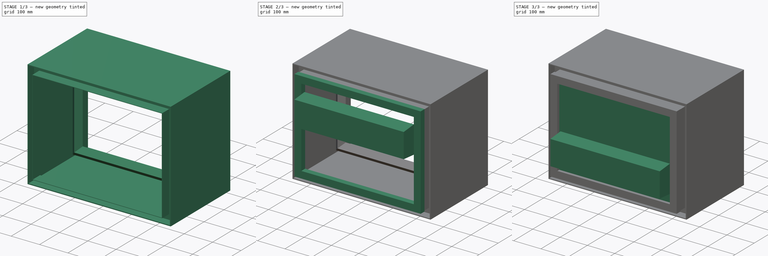
[diagram: build sequence overview — one tinted view per stage of 3, left to right]
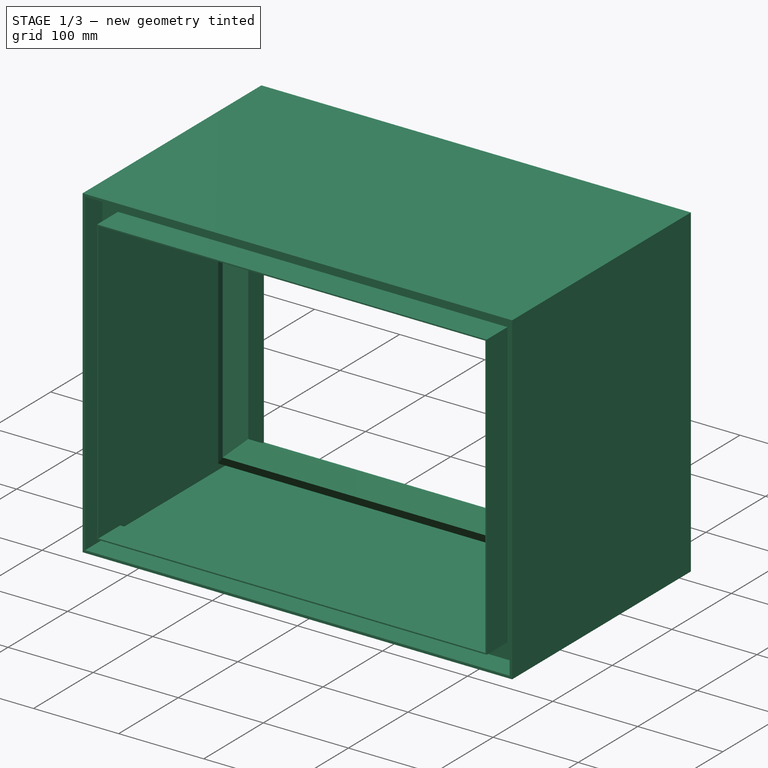
[diagram: stage 1 of 3 — iso view after this stage's code; geometry added in this stage tinted green]
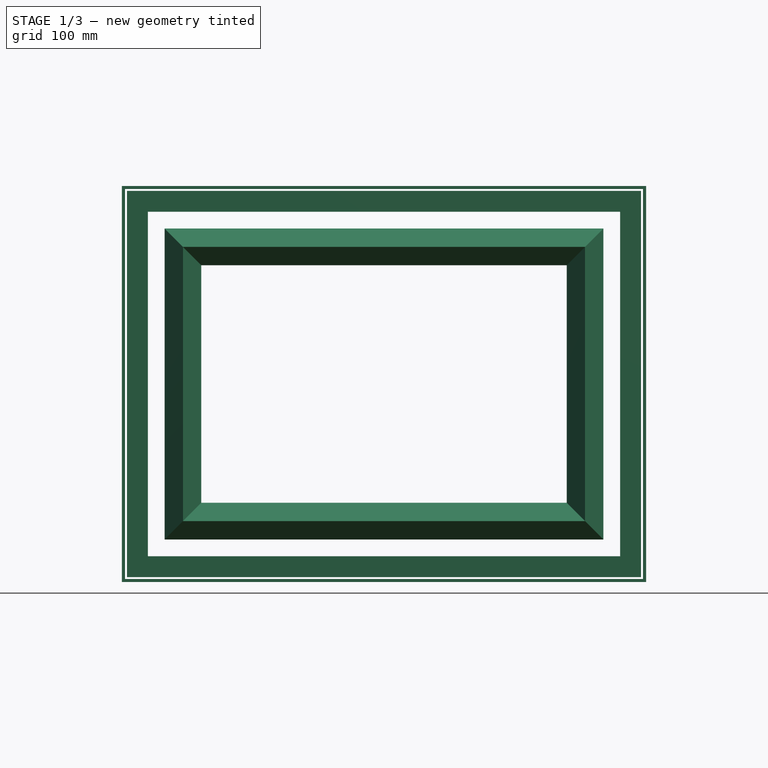
[diagram: stage 1 of 3 — front view after this stage's code; geometry added in this stage tinted green]
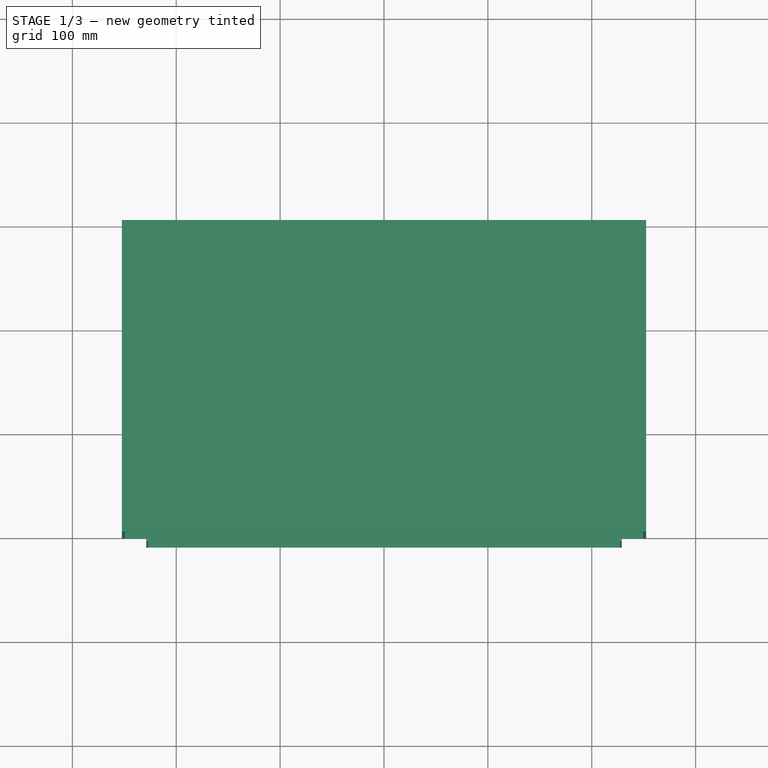
[diagram: stage 1 of 3 — top view after this stage's code; geometry added in this stage tinted green]
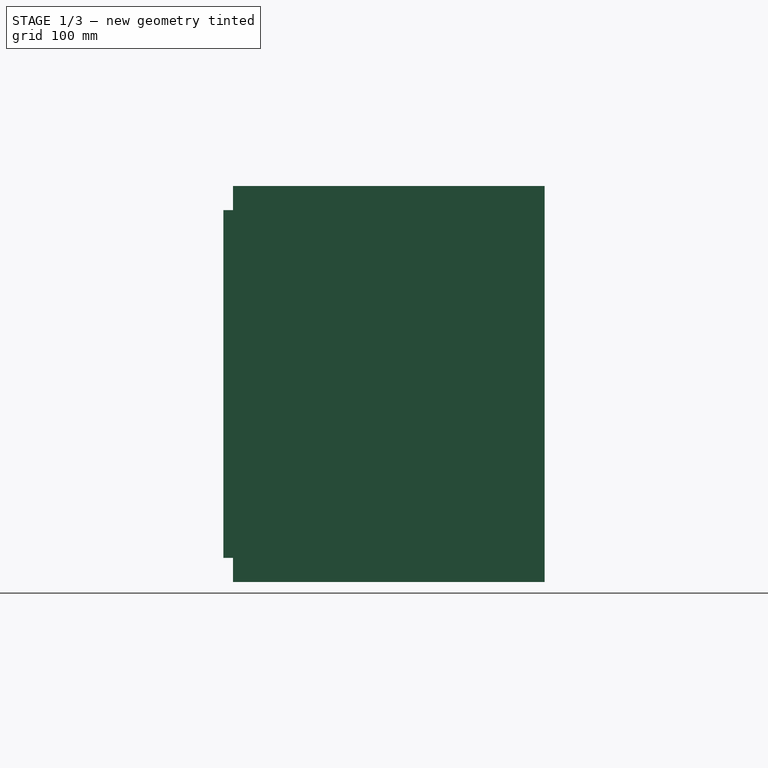
[diagram: stage 1 of 3 — right view after this stage's code; geometry added in this stage tinted green]
FCSTD DOCUMENT  (FreeCAD 0.18R13516 (Git))
Label: CloudChamber_peltier
License: All rights reserved
LicenseURL: http://en.wikipedia.org/wiki/All_rights_reserved
objects: PartDesign::Body×8, Sketcher::SketchObject×7, PartDesign::Pad×4, App::DocumentObjectGroup×4, PartDesign::ShapeBinder×3, PartDesign::AdditivePipe×3, PartDesign::FeatureBase×1
note: 33 computed .brp shape members not serialized (recipe doc carries the construction recipe); baked Part::Feature solids carry a one-line shape summary decoded from their .brp

FEATURE [PartDesign::Body] Body003
  Group = -> [Sketch003,AdditivePipe,CopyPad]
  Origin = -> Origin003
  Tip = -> AdditivePipe
FEATURE [Sketcher::SketchObject] Sketch004
  MapMode = 5
  Support = -> [XY_Plane004]
  sketch-geometry (6):
    g0: LineSegment StartX=227.361 StartY=-9.22753 StartZ=0 EndX=227.361 EndY=27.2725 EndZ=0
    g1: LineSegment StartX=227.361 StartY=27.2725 StartZ=0 EndX=247.361 EndY=27.2725 EndZ=0
    g2: LineSegment StartX=247.361 StartY=27.2725 StartZ=0 EndX=247.361 EndY=25.7725 EndZ=0
    g3: LineSegment StartX=247.361 StartY=25.7725 StartZ=0 EndX=228.861 EndY=25.7725 EndZ=0
    g4: LineSegment StartX=228.861 StartY=25.7725 StartZ=0 EndX=228.861 EndY=-9.22753 EndZ=0
    g5: LineSegment StartX=227.361 StartY=-9.22753 StartZ=0 EndX=228.861 EndY=-9.22753 EndZ=0
  constraints (16):
    c: Vertical(g0)
    c: Coincident(g1,g0)
    c: Horizontal(g1)
    c: Horizontal(g3)
    c: Vertical(g4)
    c: Coincident(g5,g4)
    c: Horizontal(g5)
    c: Coincident(g0,g5)
    c: Coincident(g3,g4)
    c: Coincident(g3,g2)
    c: Vertical(g2)
    c: Distance(g2) = 1.5
    c: Coincident(g1,g2)
    c: Equal(g5,g2)
    c: Distance(g4) = 35
    c: Distance(g1) = 20
FEATURE [PartDesign::ShapeBinder] CopyPad001
  Placement = pos=(0,0,0) rot=(1,0,0;1.5708rad)
FEATURE [PartDesign::AdditivePipe] AdditivePipe001
  AuxilleryCurvelinear = true
  AuxillerySpineTangent = false
  Binormal = (0,0,0)
  Mode = 0
  Profile = -> Sketch004
  Spine = -> CopyPad001 [Edge7,Edge10,Edge12,Edge4]
  SpineTangent = false
  Transformation = 0
  Transition = 1
FEATURE [PartDesign::Body] Body004  label="drzak_led"
  Group = -> [Sketch004,AdditivePipe001,CopyPad001]
  Origin = -> Origin004
  Tip = -> AdditivePipe001
FEATURE [App::DocumentObjectGroup] Skupina003  label="okap"
  Group = -> [Body003,Body004]
FEATURE [Sketcher::SketchObject] Sketch005
  MapMode = 5
  Placement = pos=(0,0,0) rot=(1,0,0;1.5708rad)
  Support = -> [XZ_Plane005]
  sketch-geometry (10):
    g0: LineSegment StartX=-249.363 StartY=187.663 StartZ=0 EndX=249.363 EndY=187.663 EndZ=0
    g1: LineSegment StartX=249.363 StartY=187.663 StartZ=0 EndX=249.363 EndY=-187.663 EndZ=0
    g2: LineSegment StartX=249.363 StartY=-187.663 StartZ=0 EndX=-249.363 EndY=-187.663 EndZ=0
    g3: LineSegment StartX=-249.363 StartY=-187.663 StartZ=0 EndX=-249.363 EndY=187.663 EndZ=0
    g4: LineSegment [constr] StartX=-249.363 StartY=187.663 StartZ=0 EndX=0 EndY=0 EndZ=0
    g5: LineSegment [constr] StartX=0 StartY=0 StartZ=0 EndX=249.363 EndY=-187.663 EndZ=0
    g6: LineSegment StartX=-252.363 StartY=190.663 StartZ=0 EndX=252.363 EndY=190.663 EndZ=0
    g7: LineSegment StartX=252.363 StartY=190.663 StartZ=0 EndX=252.363 EndY=-190.663 EndZ=0
    g8: LineSegment StartX=252.363 StartY=-190.663 StartZ=0 EndX=-252.363 EndY=-190.663 EndZ=0
    g9: LineSegment StartX=-252.363 StartY=-190.663 StartZ=0 EndX=-252.363 EndY=190.663 EndZ=0
  constraints (26):
    c: Coincident(g0,g1)
    c: Coincident(g1,g2)
    c: Coincident(g2,g3)
    c: Coincident(g3,g0)
    c: Horizontal(g0)
    c: Horizontal(g2)
    c: Vertical(g1)
    c: Vertical(g3)
    c: Coincident(g4,g0)
    c: Coincident(g4,g-1)
    c: Coincident(g5,g-1)
    c: Coincident(g5,g1)
    c: Equal(g5,g4)
    c: Parallel(g5,g4)
    c: Coincident(g6,g7)
    c: Coincident(g7,g8)
    c: Coincident(g8,g9)
    c: Coincident(g9,g6)
    c: Horizontal(g6)
    c: Horizontal(g8)
    c: Vertical(g7)
    c: Vertical(g9)
    c: Distance(g1,g8) = 3
    c: DistanceX(g1,g7) = 3
    c: DistanceX(g6,g0) = 3
    c: DistanceY(g0,g6) = 3
FEATURE [PartDesign::Pad] Pad003
  Length = 300
  Length2 = 100
  Placement = pos=(0,0,0) rot=(1,0,0;1.5708rad)
  Profile = -> Sketch005
  Reversed = true
  Type = 0
FEATURE [PartDesign::Body] Body005  label="stěny"
  Group = -> [Sketch005,Pad003]
  Origin = -> Origin005
  Placement = pos=(0,-65,0) rot=(0,0,1;0rad)
  Tip = -> Pad003
FEATURE [App::DocumentObjectGroup] Skupina001  label="Skleník"
  Group = -> [Body005]
FEATURE [PartDesign::Body] Body007
  Origin = -> Origin007
FEATURE [Sketcher::SketchObject] Sketch006
  MapMode = 5
  Support = -> [XY_Plane006]
  sketch-geometry (8):
    g0: LineSegment StartX=175.873 StartY=168.645 StartZ=0 EndX=193.551 EndY=150.967 EndZ=0
    g1: LineSegment StartX=193.551 StartY=150.967 StartZ=0 EndX=211.228 EndY=168.645 EndZ=0
    g2: LineSegment StartX=211.228 StartY=168.645 StartZ=0 EndX=210.168 EndY=169.705 EndZ=0
    g3: LineSegment StartX=210.168 StartY=169.705 StartZ=0 EndX=193.551 EndY=153.088 EndZ=0
    g4: LineSegment StartX=193.551 StartY=153.088 StartZ=0 EndX=176.934 EndY=169.705 EndZ=0
    g5: LineSegment StartX=175.873 StartY=168.645 StartZ=0 EndX=176.934 EndY=169.705 EndZ=0
    g6: LineSegment [constr] StartX=176.934 StartY=169.705 StartZ=0 EndX=193.551 EndY=169.705 EndZ=0
    g7: LineSegment [constr] StartX=193.551 StartY=169.705 StartZ=0 EndX=210.168 EndY=169.705 EndZ=0
  constraints (21):
    c: Coincident(g2,g1)
    c: Coincident(g5,g0)
    c: Coincident(g5,g4)
    c: Perpendicular(g5,g2)
    c: Equal(g2,g5)
    c: Perpendicular(g4,g5)
    c: Parallel(g0,g4)
    c: Parallel(g1,g3)
    c: Coincident(g2,g3)
    c: Coincident(g3,g4)
    c: Coincident(g0,g1)
    c: Angle(g3,g4) = 1.5708
    c: Equal(g3,g4)
    c: Distance(g2) = 1.5
    c: Distance(g1) = 25
    c: Coincident(g6,g4)
    c: Horizontal(g6)
    c: Coincident(g7,g2)
    c: Coincident(g6,g7)
    c: Horizontal(g7)
    c: Equal(g7,g6)
FEATURE [PartDesign::ShapeBinder] CopyPad002
  Placement = pos=(0,0,0) rot=(1,0,0;1.5708rad)
FEATURE [PartDesign::AdditivePipe] AdditivePipe002
  AuxilleryCurvelinear = true
  AuxillerySpineTangent = false
  Binormal = (0,0,0)
  Mode = 0
  Profile = -> Sketch006
  Spine = -> CopyPad002 [Edge6,Edge9,Edge3,Edge11]
  SpineTangent = false
  Transformation = 0
  Transition = 1
FEATURE [PartDesign::Body] Body006
  Group = -> [Sketch006,AdditivePipe002,CopyPad002]
  Origin = -> Origin006
  Tip = -> AdditivePipe002
FEATURE [App::DocumentObjectGroup] Skupina002  label="Alokhol"
  Group = -> [Skupina003,Body006]
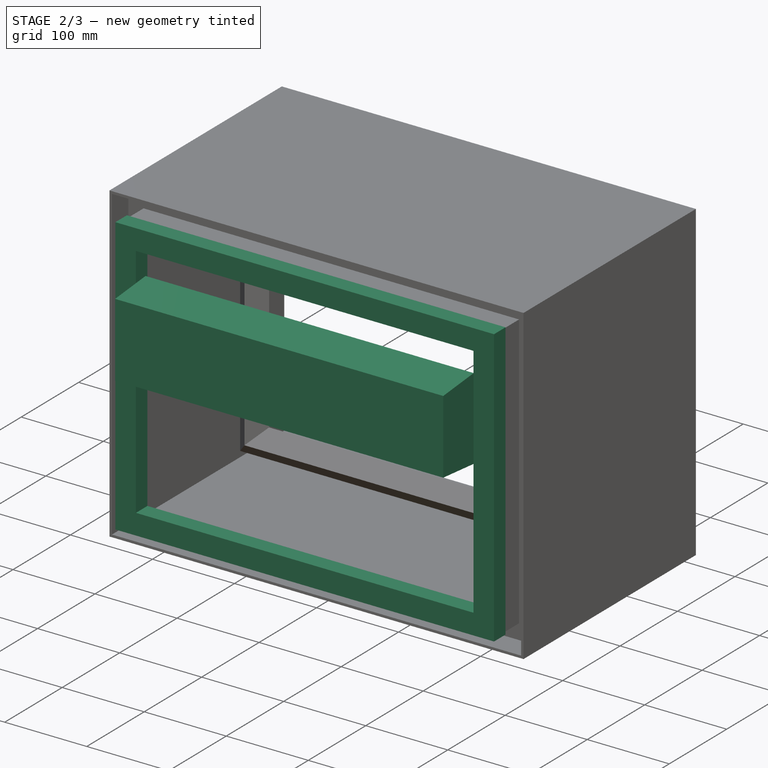
[diagram: stage 2 of 3 — iso view after this stage's code; geometry added in this stage tinted green]
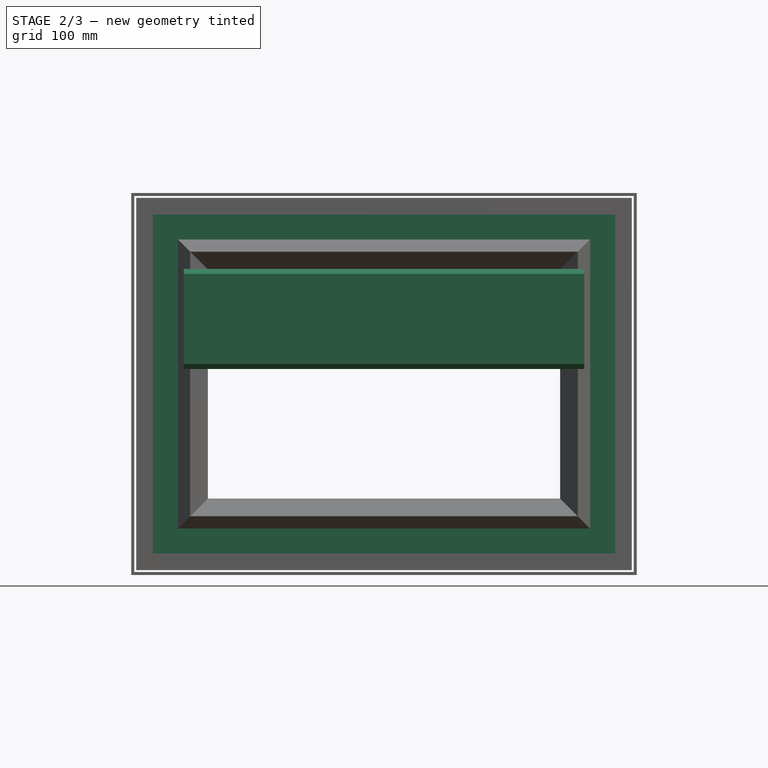
[diagram: stage 2 of 3 — front view after this stage's code; geometry added in this stage tinted green]
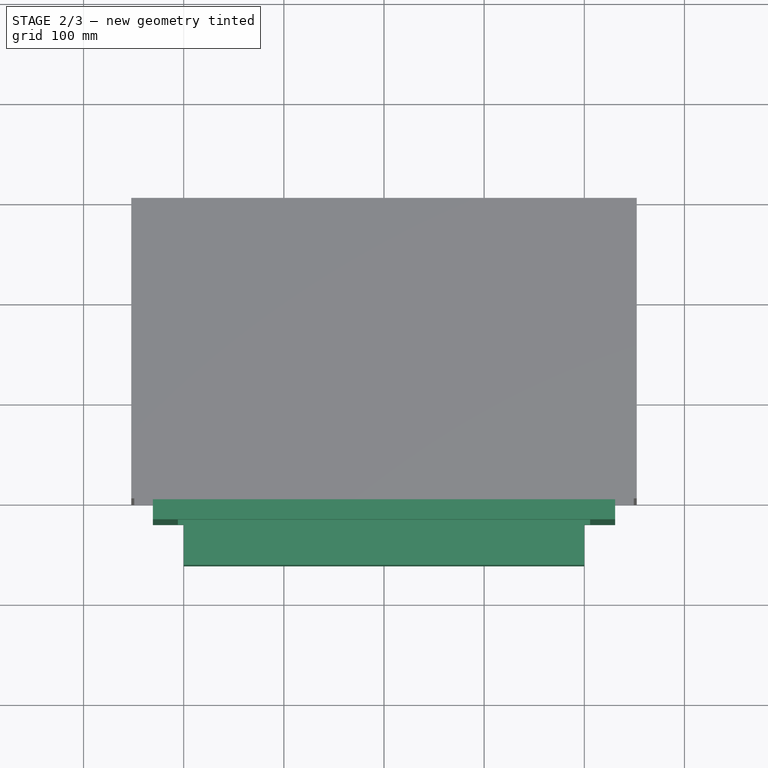
[diagram: stage 2 of 3 — top view after this stage's code; geometry added in this stage tinted green]
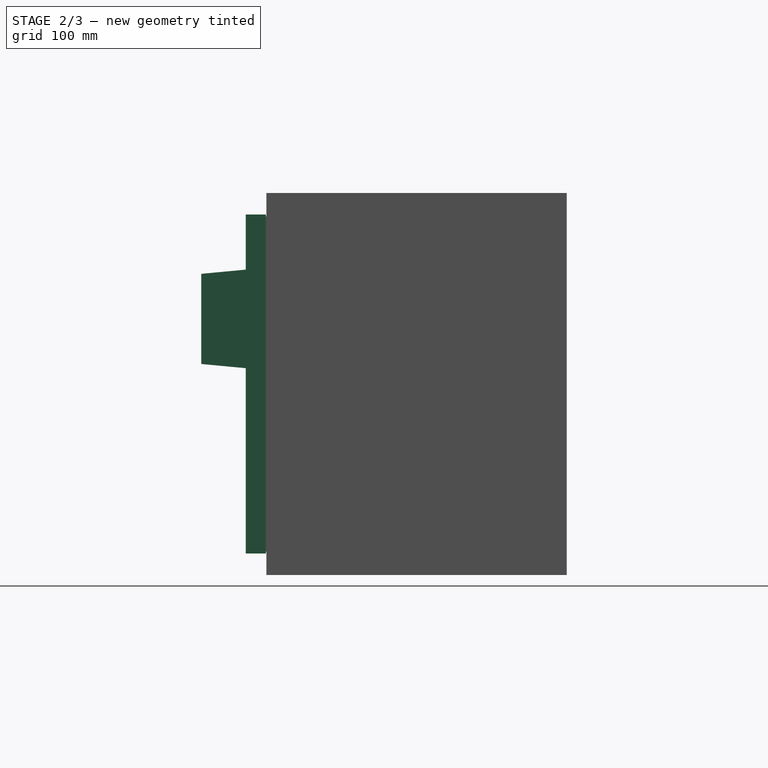
[diagram: stage 2 of 3 — right view after this stage's code; geometry added in this stage tinted green]
FEATURE [PartDesign::Body] Body  label="Chladící podložka"
  Group = -> [Sketch,Pad]
  Origin = -> Origin
  Placement = pos=(0,12,0) rot=(0,0,1;0rad)
  Tip = -> Pad
FEATURE [Sketcher::SketchObject] Sketch001
  MapMode = 5
  Placement = pos=(0,0,0) rot=(0.57735,0.57735,0.57735;2.0944rad)
  Support = -> [YZ_Plane001]
  sketch-geometry (7):
    g0: LineSegment [constr] StartX=-65 StartY=115 StartZ=0 EndX=-12 EndY=115 EndZ=0
    g1: LineSegment StartX=-12 StartY=115 StartZ=0 EndX=-12 EndY=15 EndZ=0
    g2: LineSegment [constr] StartX=-12 StartY=15 StartZ=0 EndX=-65 EndY=15 EndZ=0
    g3: LineSegment [constr] StartX=-65 StartY=15 StartZ=0 EndX=-65 EndY=115 EndZ=0
    g4: LineSegment StartX=-12 StartY=15 StartZ=0 EndX=-65 EndY=20 EndZ=0
    g5: LineSegment StartX=-65 StartY=20 StartZ=0 EndX=-65 EndY=110 EndZ=0
    g6: LineSegment StartX=-65 StartY=110 StartZ=0 EndX=-12 EndY=115 EndZ=0
  constraints (21):
    c: Coincident(g0,g1)
    c: Coincident(g1,g2)
    c: Coincident(g2,g3)
    c: Coincident(g3,g0)
    c: Horizontal(g0)
    c: Horizontal(g2)
    c: Vertical(g1)
    c: Vertical(g3)
    c: DistanceX(g0,g0) = 53
    c: DistanceY(g1,g1) = 100
    c: DistanceY(g-1,g1) = 15
    c: DistanceX(g1,g-1) = 12
    c: Coincident(g4,g1)
    c: PointOnObject(g4,g3)
    c: Coincident(g5,g4)
    c: Vertical(g5)
    c: PointOnObject(g6,g1)
    c: Coincident(g5,g6)
    c: DistanceY(g5,g0) = 5
    c: DistanceY(g2,g4) = 5
    c: Coincident(g0,g6)
FEATURE [PartDesign::Pad] Pad001
  Length = 400
  Length2 = 100
  Midplane = true
  Placement = pos=(0,0,0) rot=(0.57735,0.57735,0.57735;2.0944rad)
  Profile = -> Sketch001
  Type = 0
FEATURE [App::DocumentObjectGroup] Skupina  label="Chlazení"
  Group = -> [Body,Body001,Body002,Clone]
FEATURE [Sketcher::SketchObject] Sketch003
  MapMode = 5
  Support = -> [XY_Plane003]
  sketch-geometry (10):
    g0: LineSegment StartX=205.776 StartY=-0.507126 StartZ=0 EndX=205.776 EndY=-20.5071 EndZ=0
    g1: LineSegment StartX=205.776 StartY=-20.5071 StartZ=0 EndX=230.776 EndY=-20.5071 EndZ=0
    g2: LineSegment StartX=230.776 StartY=-20.5071 StartZ=0 EndX=230.776 EndY=-0.507126 EndZ=0
    g3: LineSegment StartX=230.776 StartY=-0.507126 StartZ=0 EndX=229.276 EndY=-0.507126 EndZ=0
    g4: LineSegment StartX=229.276 StartY=-0.507126 StartZ=0 EndX=229.276 EndY=-19.0071 EndZ=0
    g5: LineSegment StartX=229.276 StartY=-19.0071 StartZ=0 EndX=207.276 EndY=-19.0071 EndZ=0
    g6: LineSegment StartX=207.276 StartY=-19.0071 StartZ=0 EndX=207.276 EndY=-0.507126 EndZ=0
    g7: LineSegment StartX=207.276 StartY=-0.507126 StartZ=0 EndX=205.776 EndY=-0.507126 EndZ=0
    g8: LineSegment [constr] StartX=207.276 StartY=-0.507126 StartZ=0 EndX=229.276 EndY=-0.507126 EndZ=0
    g9: LineSegment [constr] StartX=229.276 StartY=-19.0071 StartZ=0 EndX=229.276 EndY=-20.5071 EndZ=0
  constraints (27):
    c: Vertical(g0)
    c: Coincident(g1,g0)
    c: Horizontal(g1)
    c: Vertical(g2)
    c: Coincident(g3,g2)
    c: Horizontal(g3)
    c: Coincident(g4,g3)
    c: Vertical(g4)
    c: Horizontal(g5)
    c: Coincident(g6,g5)
    c: Vertical(g6)
    c: Coincident(g7,g6)
    c: Coincident(g7,g0)
    c: Coincident(g8,g6)
    c: Coincident(g8,g3)
    c: Horizontal(g7)
    c: Horizontal(g8)
    c: Equal(g7,g3)
    c: Coincident(g9,g5)
    c: PointOnObject(g9,g1)
    c: Vertical(g9)
    c: Coincident(g4,g5)
    c: Equal(g9,g3)
    c: Distance(g3) = 1.5
    c: Distance(g2) = 20
    c: Coincident(g1,g2)
    c: DistanceX(g1,g1) = 25
FEATURE [PartDesign::ShapeBinder] CopyPad
  Placement = pos=(0,0,0) rot=(1,0,0;1.5708rad)
FEATURE [PartDesign::AdditivePipe] AdditivePipe
  AuxilleryCurvelinear = true
  AuxillerySpineTangent = false
  Binormal = (0,0,0)
  Mode = 0
  Profile = -> Sketch003
  Spine = -> CopyPad [Edge7,Edge10,Edge4,Edge12]
  SpineTangent = false
  Transformation = 0
  Transition = 1
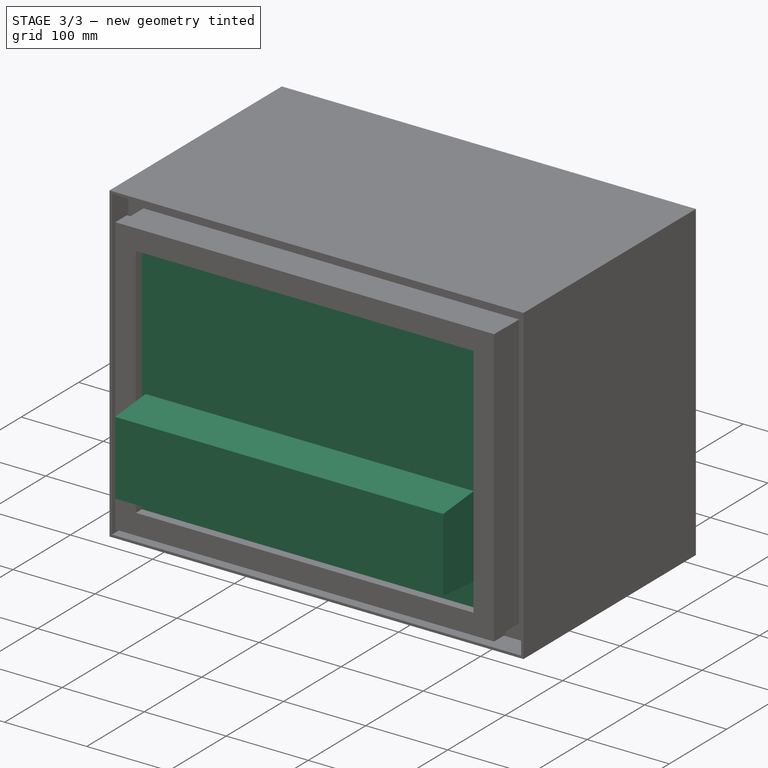
[diagram: stage 3 of 3 — iso view after this stage's code; geometry added in this stage tinted green]
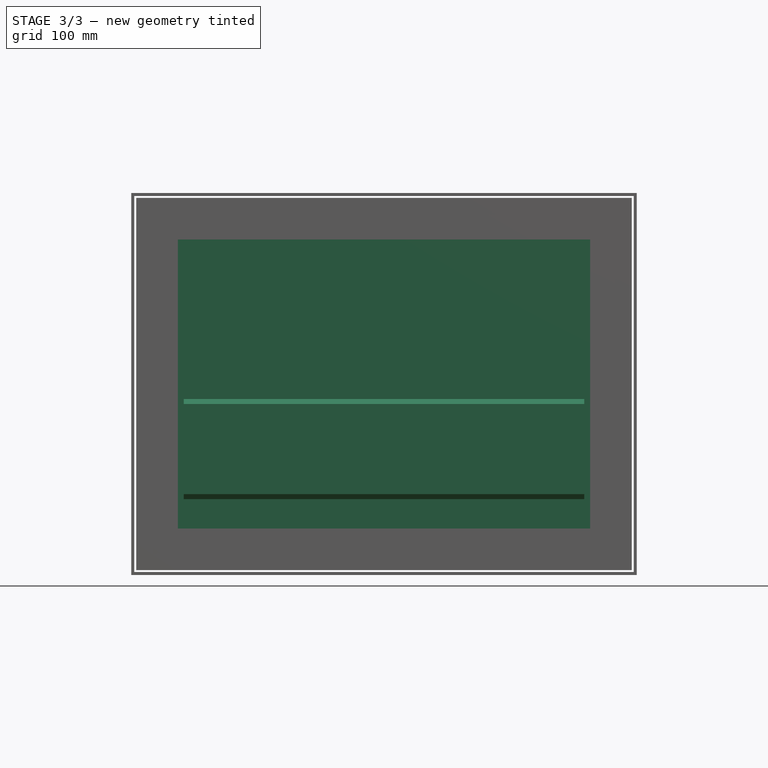
[diagram: stage 3 of 3 — front view after this stage's code; geometry added in this stage tinted green]
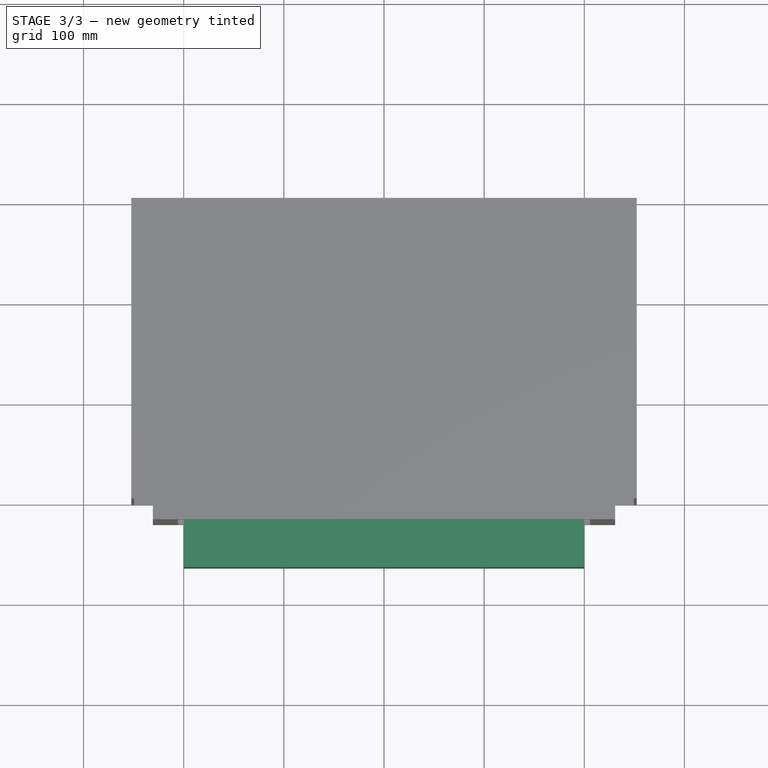
[diagram: stage 3 of 3 — top view after this stage's code; geometry added in this stage tinted green]
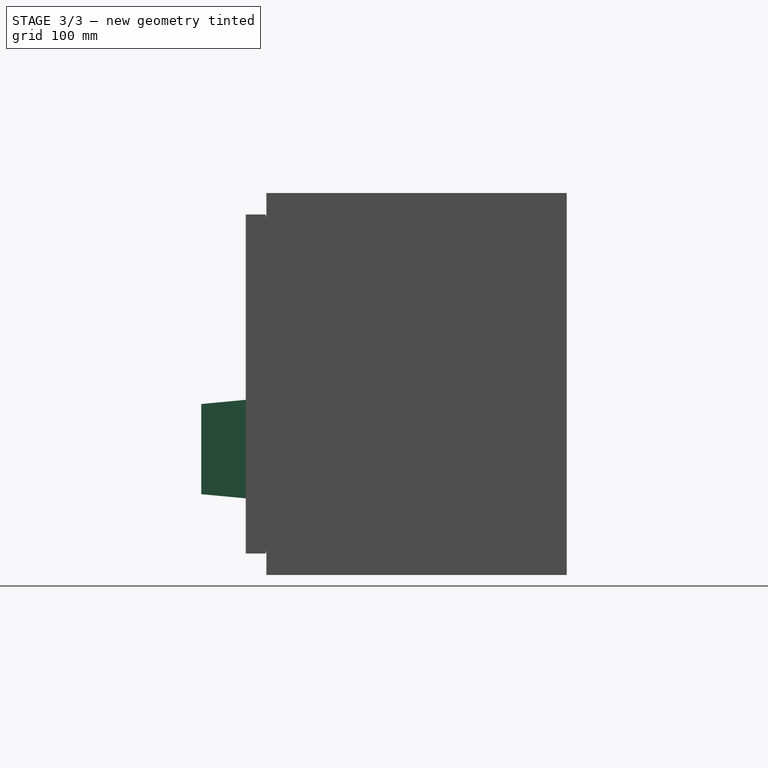
[diagram: stage 3 of 3 — right view after this stage's code; geometry added in this stage tinted green]
FEATURE [Sketcher::SketchObject] Sketch
  MapMode = 5
  Placement = pos=(0,0,0) rot=(1,0,0;1.5708rad)
  Support = -> [XZ_Plane]
  sketch-geometry (6):
    g0: LineSegment StartX=-210 StartY=148.5 StartZ=0 EndX=210 EndY=148.5 EndZ=0
    g1: LineSegment StartX=210 StartY=148.5 StartZ=0 EndX=210 EndY=-148.5 EndZ=0
    g2: LineSegment StartX=210 StartY=-148.5 StartZ=0 EndX=-210 EndY=-148.5 EndZ=0
    g3: LineSegment StartX=-210 StartY=-148.5 StartZ=0 EndX=-210 EndY=148.5 EndZ=0
    g4: LineSegment [constr] StartX=-210 StartY=148.5 StartZ=0 EndX=0 EndY=0 EndZ=0
    g5: LineSegment [constr] StartX=0 StartY=0 StartZ=0 EndX=210 EndY=-148.5 EndZ=0
  constraints (16):
    c: Coincident(g0,g1)
    c: Coincident(g1,g2)
    c: Coincident(g2,g3)
    c: Coincident(g3,g0)
    c: Horizontal(g0)
    c: Horizontal(g2)
    c: Vertical(g1)
    c: Vertical(g3)
    c: Coincident(g4,g0)
    c: Coincident(g4,g-1)
    c: Coincident(g5,g-1)
    c: Coincident(g5,g1)
    c: Equal(g5,g4)
    c: Parallel(g4,g5)
    c: Distance(g2) = 420
    c: DistanceY(g1,g1) = 297
FEATURE [PartDesign::Pad] Pad
  Length = 10
  Length2 = 100
  Placement = pos=(0,0,0) rot=(1,0,0;1.5708rad)
  Profile = -> Sketch
  Type = 0
FEATURE [PartDesign::Body] Body001  label="Chladic"
  Group = -> [Sketch001,Pad001]
  Origin = -> Origin001
  Tip = -> Pad001
FEATURE [Sketcher::SketchObject] Sketch002
  MapMode = 5
  Placement = pos=(0,0,0) rot=(1,0,0;1.5708rad)
  Support = -> [XZ_Plane002]
  sketch-geometry (10):
    g0: LineSegment [constr] StartX=-210 StartY=148.5 StartZ=0 EndX=210 EndY=148.5 EndZ=0
    g1: LineSegment [constr] StartX=210 StartY=148.5 StartZ=0 EndX=210 EndY=-148.5 EndZ=0
    g2: LineSegment [constr] StartX=210 StartY=-148.5 StartZ=0 EndX=-210 EndY=-148.5 EndZ=0
    g3: LineSegment [constr] StartX=-210 StartY=-148.5 StartZ=0 EndX=-210 EndY=148.5 EndZ=0
    g4: LineSegment [constr] StartX=-210 StartY=148.5 StartZ=0 EndX=0 EndY=0 EndZ=0
    g5: LineSegment [constr] StartX=0 StartY=0 StartZ=0 EndX=210 EndY=-148.5 EndZ=0
    g6: LineSegment StartX=-195.859 StartY=138.5 StartZ=0 EndX=200 EndY=138.5 EndZ=0
    g7: LineSegment StartX=200 StartY=138.5 StartZ=0 EndX=200 EndY=-141.429 EndZ=0
    g8: LineSegment StartX=200 StartY=-141.429 StartZ=0 EndX=-195.859 EndY=-141.429 EndZ=0
    g9: LineSegment StartX=-195.859 StartY=-141.429 StartZ=0 EndX=-195.859 EndY=138.5 EndZ=0
  constraints (28):
    c: Coincident(g0,g1)
    c: Coincident(g1,g2)
    c: Coincident(g2,g3)
    c: Coincident(g3,g0)
    c: Horizontal(g0)
    c: Horizontal(g2)
    c: Vertical(g1)
    c: Vertical(g3)
    c: Coincident(g4,g0)
    c: Coincident(g4,g-1)
    c: Coincident(g5,g-1)
    c: Coincident(g5,g1)
    c: Equal(g5,g4)
    c: Parallel(g4,g5)
    c: Distance(g2) = 420
    c: DistanceY(g1,g1) = 297
    c: Coincident(g6,g7)
    c: Coincident(g7,g8)
    c: Coincident(g8,g9)
    c: Coincident(g9,g6)
    c: Horizontal(g6)
    c: Horizontal(g8)
    c: Vertical(g7)
    c: Vertical(g9)
    c: PointOnObject(g6,g4)
    c: PointOnObject(g7,g5)
    c: DistanceY(g6,g0) = 10
    c: DistanceX(g6,g0) = 10
FEATURE [PartDesign::Pad] Pad002
  Length = 4
  Length2 = 100
  Placement = pos=(0,0,0) rot=(1,0,0;1.5708rad)
  Profile = -> Sketch002
  Type = 0
FEATURE [PartDesign::Body] Body002  label="Chladici podlozka - mezistupeň"
  Group = -> [Sketch002,Pad002]
  Origin = -> Origin002
  Placement = pos=(0,-3,0) rot=(0,0,1;0rad)
  Tip = -> Pad002
FEATURE [PartDesign::FeatureBase] Clone
  BaseFeature = -> Body001
  Placement = pos=(0,0,-130) rot=(0,0,1;0rad)
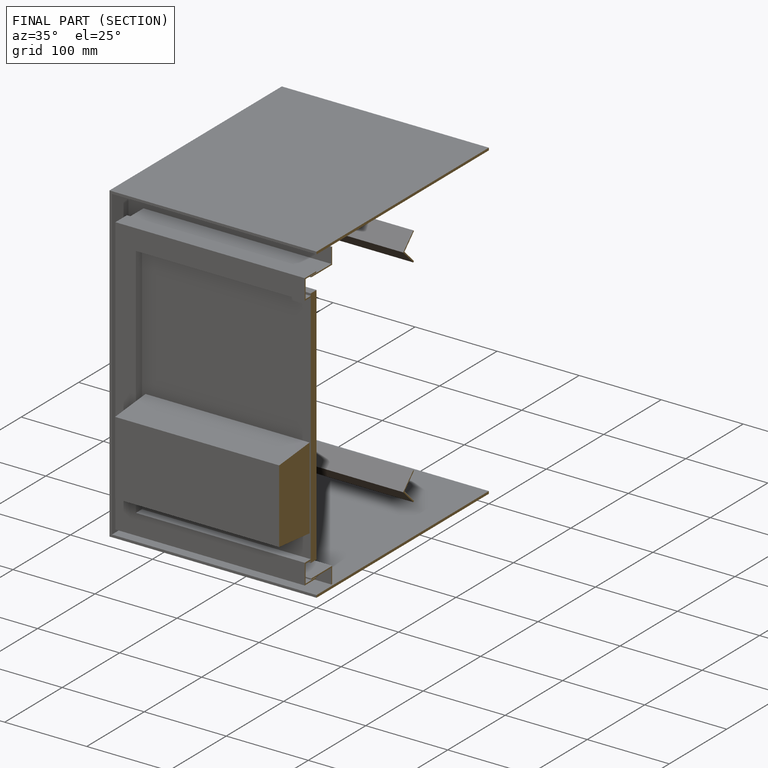
[diagram: finished part — half-section view (interior)]
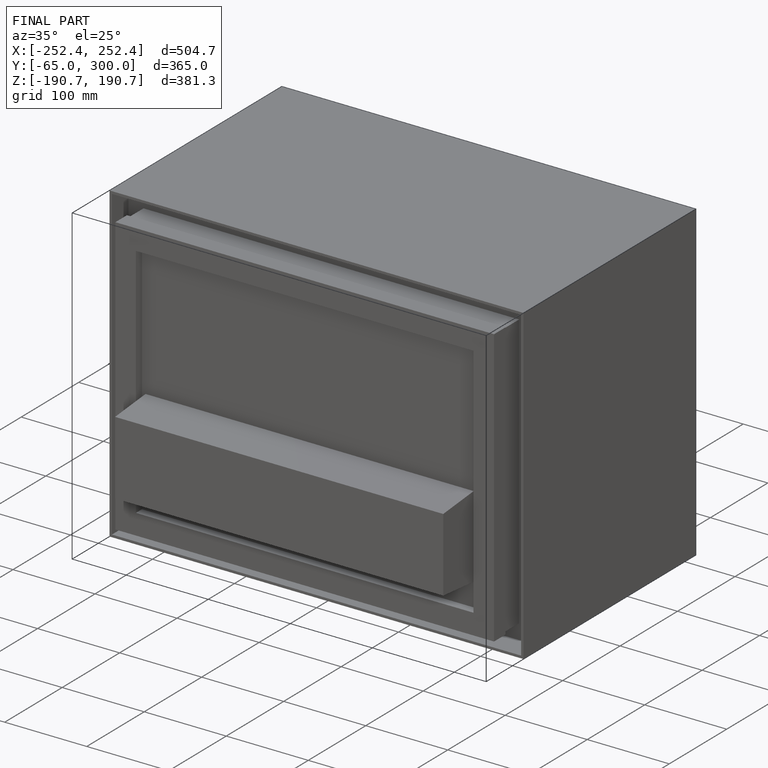
[diagram: finished part — iso view with bounding-box wireframe]
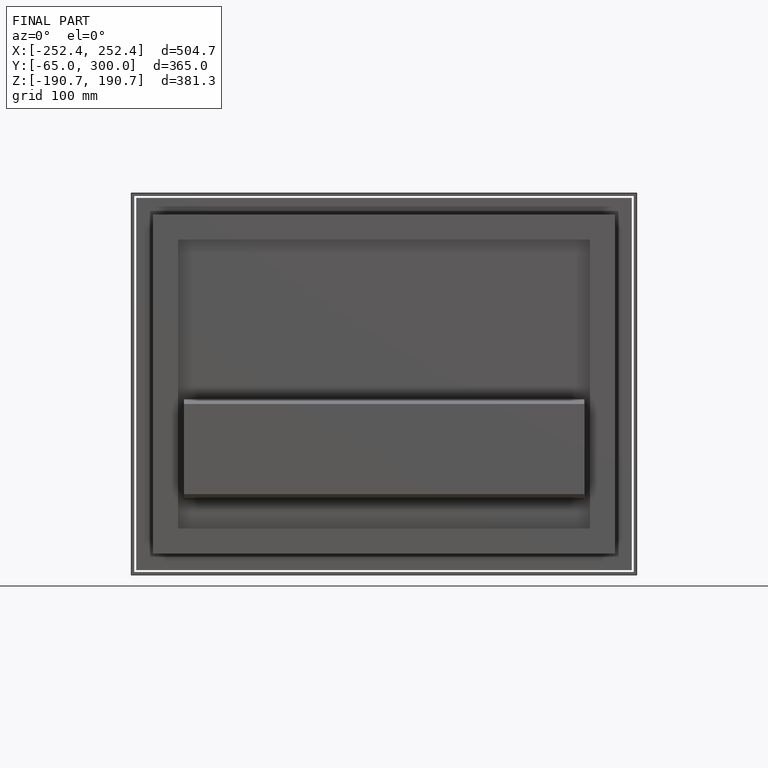
[diagram: finished part — front view with bounding-box wireframe]
